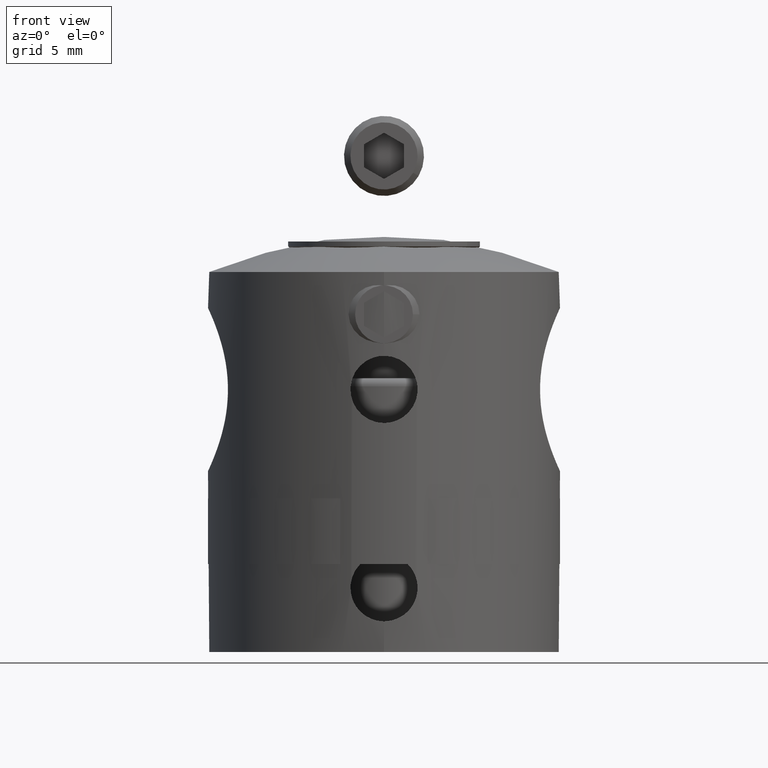
[diagram: clean part render]
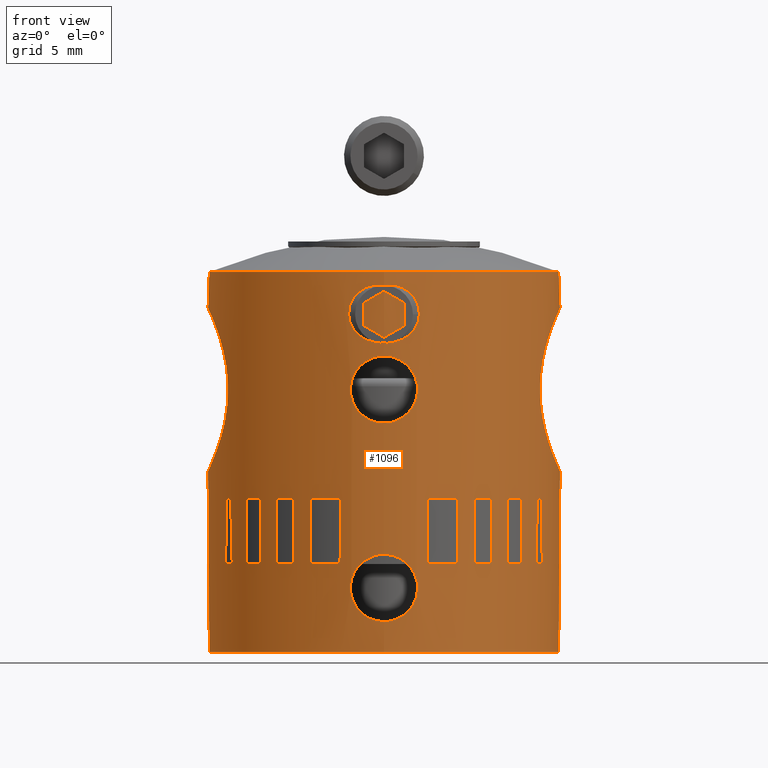
[diagram: same view with one face highlighted and labeled with its STEP entity id]
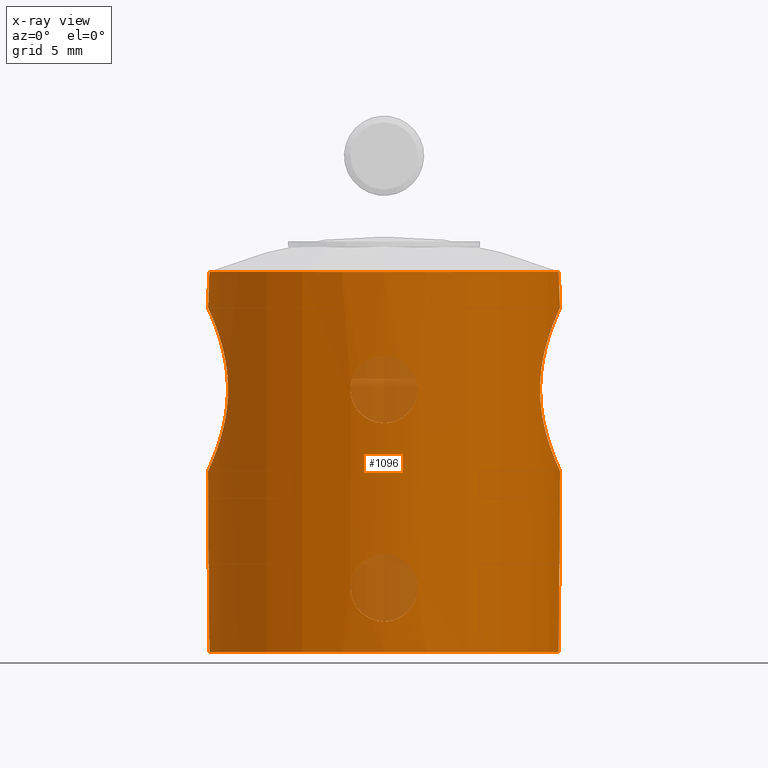
[diagram: x-ray of the same camera — body ghosted, the highlighted face saturated]
A machine part, front view. The second image highlights one B-rep face of the part: STEP entity #1096.
The next image is the same camera in x-ray: the body ghosted, the highlighted face saturated — about 5% of this face is hidden behind the body in this view.
In plain terms, the highlighted cylindrical surface (bore or boss wall) has radius 11 mm, axis along (0, 0, 1).
Its self-contained STEP definition (entity closure, byte-faithful):
#53 = CARTESIAN_POINT ( 'NONE',  ( 0.1390778096618671689, -11.00000000000000355, -11.10000000000000142 ) ) ;
#119 = DIRECTION ( 'NONE',  ( 0.000000000000000000, -1.000000000000000000, 0.000000000000000000 ) ) ;
#137 = CARTESIAN_POINT ( 'NONE',  ( 9.746609327651654553, -5.099373206684536086, 3.052602513484489855 ) ) ;
#152 = CARTESIAN_POINT ( 'NONE',  ( 9.746124043521529501, -5.100300603888072715, 3.559708417596913588 ) ) ;
#154 = CARTESIAN_POINT ( 'NONE',  ( 1.670711584421386231, -10.87265779864739379, 2.120311429146117810 ) ) ;
#173 = CARTESIAN_POINT ( 'NONE',  ( 10.47201491691116360, 3.376167339972386383, -0.4368857019754786020 ) ) ;
#187 = CARTESIAN_POINT ( 'NONE',  ( 10.00222700330179215, 4.579911297734634346, 1.131586462508988866 ) ) ;
#189 = CARTESIAN_POINT ( 'NONE',  ( 1.823215479922151827, -10.84812657183626960, 2.348921815245837319 ) ) ;
#203 = CARTESIAN_POINT ( 'NONE',  ( 10.47336877759368257, 3.371864480480706749, 7.240471103475924153 ) ) ;
#213 = CARTESIAN_POINT ( 'NONE',  ( -10.00436061697044465, 4.575241178648819407, 1.122541233511171077 ) ) ;
#223 = CARTESIAN_POINT ( 'NONE',  ( 1.582514419226412228, -10.88600606640208035, -10.38718783353529673 ) ) ;
#234 = CARTESIAN_POINT ( 'NONE',  ( -10.30987621817059896, 3.842732241926126946, 6.769126542046134176 ) ) ;
#248 = CARTESIAN_POINT ( 'NONE',  ( -1.821864279235781092, -10.84835111419837617, -7.946684534337975947 ) ) ;
#251 = CARTESIAN_POINT ( 'NONE',  ( -10.69790093024884925, 2.576078500588502074, 7.814079172159772213 ) ) ;
#268 = CARTESIAN_POINT ( 'NONE',  ( -10.76752374769291798, -2.271502190894518325, 7.978547653442555898 ) ) ;
#289 = CARTESIAN_POINT ( 'NONE',  ( -9.764554807653102131, 5.065479761543582704, 2.718647728195082713 ) ) ;
#320 = CARTESIAN_POINT ( 'NONE',  ( -10.99999999999999645, 4.878909776184769953E-16, -1.700000000000003064 ) ) ;
#325 = CARTESIAN_POINT ( 'NONE',  ( -0.6781069570240140232, -10.97981643080941438, 5.392249392990757784 ) ) ;
#330 = CARTESIAN_POINT ( 'NONE',  ( 2.033263212878624770, -10.81048461628543755, -9.542819864721787226 ) ) ;
#349 = CARTESIAN_POINT ( 'NONE',  ( -10.87810309732536318, -1.662940417430559759, -1.432878585699570939 ) ) ;
#374 = CARTESIAN_POINT ( 'NONE',  ( 10.31115410062419535, -3.839293709232862728, 0.02699850404313090813 ) ) ;
#403 = CARTESIAN_POINT ( 'NONE',  ( 10.55213191267872297, -3.119896509840596632, -0.6479981029836979767 ) ) ;
#434 = ORIENTED_EDGE ( 'NONE', *, *, #4637, .T. ) ;
#562 = CARTESIAN_POINT ( 'NONE',  ( 10.87989800168599963, 1.651396176960100437, 8.236911357964345370 ) ) ;
#575 = ORIENTED_EDGE ( 'NONE', *, *, #973, .T. ) ;
#577 = CARTESIAN_POINT ( 'NONE',  ( 10.70022606909252794, 2.566238421094040767, 7.819640233800054574 ) ) ;
#579 = CARTESIAN_POINT ( 'NONE',  ( -2.303929616531696922E-16, -11.00000000000000000, 1.300000000000004263 ) ) ;
#589 = CARTESIAN_POINT ( 'NONE',  ( 10.00459041982639086, 4.574747880705966274, 5.678538269461365751 ) ) ;
#606 = CARTESIAN_POINT ( 'NONE',  ( 9.880766135392445193, 4.836382232452138830, 1.747518722099671518 ) ) ;
#609 = CARTESIAN_POINT ( 'NONE',  ( 0.1390778096618647541, -11.00000000000000355, 1.300000000000004485 ) ) ;
#636 = CARTESIAN_POINT ( 'NONE',  ( -9.831210612696356321, 4.934853384125914566, 4.730436153801835353 ) ) ;
#654 = CARTESIAN_POINT ( 'NONE',  ( -9.768733347336901573, -5.056898271221757390, 4.083022002038141807 ) ) ;
#658 = DIRECTION ( 'NONE',  ( -0.000000000000000000, 1.081595917263183534E-17, 1.000000000000000000 ) ) ;
#670 = CARTESIAN_POINT ( 'NONE',  ( -0.9319663072103629986, -10.96118774137462815, -7.113117520548483341 ) ) ;
#672 = CARTESIAN_POINT ( 'NONE',  ( -10.92203846952601332, 1.349500825788742198, 8.329965682474750110 ) ) ;
#692 = CARTESIAN_POINT ( 'NONE',  ( -9.833678025644264409, -4.929959429588496533, 4.748884314534944195 ) ) ;
#704 = CARTESIAN_POINT ( 'NONE',  ( -0.6781376468636769461, -10.97981628967169243, -10.99225057744506806 ) ) ;
#706 = CARTESIAN_POINT ( 'NONE',  ( -9.880785821988750328, 4.836366772746155007, 5.052864538979770614 ) ) ;
#720 = CARTESIAN_POINT ( 'NONE',  ( -0.2757686476963308042, -10.99736528176723205, -11.08632082349912729 ) ) ;
#733 = CARTESIAN_POINT ( 'NONE',  ( -1.992922399063346006, -10.81809270954977897, 4.076203121792942419 ) ) ;
#773 = CARTESIAN_POINT ( 'NONE',  ( -0.9322983872529652105, -10.96116125874257996, 1.513269296229716065 ) ) ;
#816 = CARTESIAN_POINT ( 'NONE',  ( 10.92358240342935716, -1.335907363905574741, -1.533369162542973951 ) ) ;
#853 = CARTESIAN_POINT ( 'NONE',  ( 10.76607921010691982, -2.278039284623407656, -1.175144396893942123 ) ) ;
#867 = B_SPLINE_CURVE_WITH_KNOTS ( 'NONE', 3,
 ( #5302, #5287, #720, #3213, #704, #2781, #3655, #4880, #4857, #1527, #1599, #1120, #4441, #1564, #2029, #1161, #5325, #2802, #248, #4927, #3638, #4103, #4041, #4078, #670, #1104, #1133, #2832, #4058, #4457, #1970, #2435, #3594, #3673, #2370, #4475, #4912, #4895, #1580, #2406, #4500, #2004, #1179, #330, #5081, #2844, #3665, #4089, #223, #2083, #2999, #4618, #2517, #2126, #53, #2579 ),
 .UNSPECIFIED., .T., .F.,
 ( 4, 2, 2, 2, 2, 2, 2, 2, 2, 2, 2, 2, 2, 2, 2, 2, 2, 2, 2, 2, 2, 2, 2, 2, 2, 2, 2, 4 ),
 ( 0.000000000000000000, 0.0004112398612379134888, 0.0008224797224758267607, 0.001233719583713739762, 0.001644959444951652654, 0.002467439167427479089, 0.003289918889903304874, 0.003701158751141219935, 0.004112398612379135864, 0.004523638473617050924, 0.004934878334854965118, 0.005346118196092881046, 0.005757358057330795240, 0.006168597918568711168, 0.006579837779806626229, 0.007402317502282455483, 0.007813557363520372279, 0.008224797224758285605, 0.008636037085996200666, 0.009047276947234115727, 0.009869756669709951052, 0.01028099653094787305, 0.01069223639218579332, 0.01110347625342371358, 0.01151471611466163385, 0.01233719583713747785, 0.01274843569837539811, 0.01315967555961331664 ),
 .UNSPECIFIED. ) ;
#908 = CARTESIAN_POINT ( 'NONE',  ( -10.99999999999999645, 0.000000000000000000, -1.700000000000002620 ) ) ;
#909 = CARTESIAN_POINT ( 'NONE',  ( 1.281199630984558580, -10.92573843364915476, 5.069567192311198234 ) ) ;
#929 = AXIS2_PLACEMENT_3D ( 'NONE', #966, #2225, #119 ) ;
#966 = CARTESIAN_POINT ( 'NONE',  ( 0.000000000000000000, -2.812149384884277619E-16, -13.00000000000000178 ) ) ;
#971 = CARTESIAN_POINT ( 'NONE',  ( 10.07413874253475505, -4.421680918401311722, 5.962721705325782828 ) ) ;
#973 = EDGE_CURVE ( 'NONE', #2203, #2203, #2979, .T. ) ;
#983 = CARTESIAN_POINT ( 'NONE',  ( 9.883215163198308062, 4.831377203079140870, 5.066688074893106908 ) ) ;
#997 = CARTESIAN_POINT ( 'NONE',  ( 9.780729526921804862, -5.033756045906779164, 4.236366929545547499 ) ) ;
#1019 = CARTESIAN_POINT ( 'NONE',  ( 9.833678025644269738, 4.929959429588492092, 4.748884314534945972 ) ) ;
#1021 = CARTESIAN_POINT ( 'NONE',  ( 0.6806038088607768710, -10.97965432502792993, 1.408647596143614900 ) ) ;
#1041 = CARTESIAN_POINT ( 'NONE',  ( 10.23062083369497977, 4.046496105150159117, 6.521604265238561737 ) ) ;
#1043 = CARTESIAN_POINT ( 'NONE',  ( 1.887604345443004039, -10.83696457773362098, 2.469507123571951013 ) ) ;
#1064 = CIRCLE ( 'NONE', #4962, 10.99999999999999467 ) ;
#1066 = CARTESIAN_POINT ( 'NONE',  ( -10.47088620841679152, 3.379449766977657532, 7.233656741537114243 ) ) ;
#1071 = FACE_BOUND ( 'NONE', #2670, .T. ) ;
#1074 = CARTESIAN_POINT ( 'NONE',  ( 10.07530021768211270, -4.419092927928360837, 0.8326171782419599099 ) ) ;
#1086 = CARTESIAN_POINT ( 'NONE',  ( -9.880766135392446969, -4.836382232452140606, 1.747518722099668409 ) ) ;
#1096 = ADVANCED_FACE ( 'NONE', ( #4392, #3290, #1071, #4538, #2194, #4271 ), #4279, .T. ) ;
#1104 = CARTESIAN_POINT ( 'NONE',  ( -0.6781069570240135791, -10.97981643080941083, -7.007750607009238131 ) ) ;
#1107 = CARTESIAN_POINT ( 'NONE',  ( -10.98389058231152227, 0.6828063300958850945, 8.465519679634480710 ) ) ;
#1120 = CARTESIAN_POINT ( 'NONE',  ( -2.044350993406146788, -10.80888394006649733, -9.552623370116647195 ) ) ;
#1122 = CARTESIAN_POINT ( 'NONE',  ( -9.750955816283148891, -5.091093399825954435, 3.745698098060158632 ) ) ;
#1133 = CARTESIAN_POINT ( 'NONE',  ( -0.5472116004057776539, -10.98720989896580669, -6.967886480110341729 ) ) ;
#1135 = CARTESIAN_POINT ( 'NONE',  ( -10.55011019610967971, 3.126729857943597590, 7.442751015673977122 ) ) ;
#1150 = CARTESIAN_POINT ( 'NONE',  ( -1.054892582810818880, -10.94989690070195998, 5.220954790265365908 ) ) ;
#1161 = CARTESIAN_POINT ( 'NONE',  ( -2.032659403802354436, -10.81059865162793621, -8.454853891728369319 ) ) ;
#1173 = CARTESIAN_POINT ( 'NONE',  ( 0.5505417721006471421, -10.98913941872515565, 5.444946193628508624 ) ) ;
#1179 = CARTESIAN_POINT ( 'NONE',  ( 2.086595700918373542, -10.80031737092473421, -9.273735418408087128 ) ) ;
#1187 = CARTESIAN_POINT ( 'NONE',  ( -0.1390778096618651982, -10.99999999999999467, 1.300000000000004041 ) ) ;
#1206 = CARTESIAN_POINT ( 'NONE',  ( -1.834681010053394568, -10.84644128760293569, 2.342309513709591950 ) ) ;
#1254 = EDGE_CURVE ( 'NONE', #3824, #3824, #1064, .T. ) ;
#1398 = CARTESIAN_POINT ( 'NONE',  ( 10.55378527435345148, 3.114166653605239254, 7.452254370556787855 ) ) ;
#1416 = CARTESIAN_POINT ( 'NONE',  ( 10.55011019610968326, -3.126729857943599811, 7.442751015673983339 ) ) ;
#1418 = CARTESIAN_POINT ( 'NONE',  ( 0.000000000000000000, 0.000000000000000000, 13.00000000000000178 ) ) ;
#1434 = CARTESIAN_POINT ( 'NONE',  ( 10.76247523156003894, 2.278529707840949214, -1.165747467150982208 ) ) ;
#1449 = CARTESIAN_POINT ( 'NONE',  ( 10.98389058231152049, -0.6828063300958880921, 8.465519679634482486 ) ) ;
#1464 = CARTESIAN_POINT ( 'NONE',  ( 10.22777535093212542, 4.053652137328400684, 0.2876938377369762656 ) ) ;
#1493 = CARTESIAN_POINT ( 'NONE',  ( -10.76524624909549033, 2.281684813646023713, 7.973174196290838900 ) ) ;
#1513 = CARTESIAN_POINT ( 'NONE',  ( -10.47201491691117070, -3.376167339972385939, -0.4368857019754819881 ) ) ;
#1527 = CARTESIAN_POINT ( 'NONE',  ( -1.678338565524258641, -10.87295724076965264, -10.29145425403354608 ) ) ;
#1529 = CARTESIAN_POINT ( 'NONE',  ( -10.69623310193279231, -2.571608090004072977, -1.007332457931326308 ) ) ;
#1549 = CARTESIAN_POINT ( 'NONE',  ( -10.00294675193620719, 4.578365243016969011, 5.671778256404885532 ) ) ;
#1564 = CARTESIAN_POINT ( 'NONE',  ( -2.100080576060141979, -10.79766926613581823, -8.863934974792822885 ) ) ;
#1575 = CARTESIAN_POINT ( 'NONE',  ( 0.2735815360057507473, -11.00002099589623938, 5.500109978512680797 ) ) ;
#1580 = CARTESIAN_POINT ( 'NONE',  ( 1.885922255304093076, -10.83725952041489293, -8.066019305492174496 ) ) ;
#1599 = CARTESIAN_POINT ( 'NONE',  ( -1.834681010053395678, -10.84644128760293569, -10.05769048629040796 ) ) ;
#1615 = CARTESIAN_POINT ( 'NONE',  ( -1.281990447053926951, -10.92563686889391938, 5.068884418742695352 ) ) ;
#1616 = AXIS2_PLACEMENT_3D ( 'NONE', #1418, #3503, #2707 ) ;
#1641 = CARTESIAN_POINT ( 'NONE',  ( -10.79372047998855244, -2.126081526392296528, -1.238728156202183239 ) ) ;
#1723 = CARTESIAN_POINT ( 'NONE',  ( 11.00000000000000000, -1.589945998376880044E-16, -1.700000000000002620 ) ) ;
#1778 = CARTESIAN_POINT ( 'NONE',  ( 0.000000000000000000, -11.00000000000000000, -13.00000000000000178 ) ) ;
#1825 = CARTESIAN_POINT ( 'NONE',  ( 10.92420653231055105, 1.331174097726977257, 8.334749637362552477 ) ) ;
#1838 = CARTESIAN_POINT ( 'NONE',  ( 10.47088620841678974, -3.379449766977658864, 7.233656741537116908 ) ) ;
#1852 = CARTESIAN_POINT ( 'NONE',  ( 0.2763807230148077054, -10.99736402501771515, 1.313681451969391123 ) ) ;
#1868 = CARTESIAN_POINT ( 'NONE',  ( 10.30987621817060074, -3.842732241926129610, 6.769126542046135953 ) ) ;
#1903 = CARTESIAN_POINT ( 'NONE',  ( -10.22938670084713308, 4.049654862654768372, 0.2822873204059796470 ) ) ;
#1916 = CARTESIAN_POINT ( 'NONE',  ( -10.07469812271536469, -4.420400662356025023, 0.8351211953837005542 ) ) ;
#1920 = EDGE_CURVE ( 'NONE', #3037, #3037, #4205, .T. ) ;
#1936 = CARTESIAN_POINT ( 'NONE',  ( -10.47336877759368434, -3.371864480480712079, 7.240471103475918824 ) ) ;
#1959 = CARTESIAN_POINT ( 'NONE',  ( -10.69954747067740364, 2.569226743090020637, -1.018044456144164611 ) ) ;
#1970 = CARTESIAN_POINT ( 'NONE',  ( 0.5505417721006465870, -10.98913941872515920, -6.955053806371497060 ) ) ;
#1972 = CARTESIAN_POINT ( 'NONE',  ( -10.76607921010692692, 2.278039284623406768, -1.175144396893942567 ) ) ;
#1997 = CARTESIAN_POINT ( 'NONE',  ( -1.388537688308394413, -10.91244555373267211, 1.818661422767404279 ) ) ;
#2004 = CARTESIAN_POINT ( 'NONE',  ( 2.100101276507924997, -10.79766524018844898, -9.137153442652046209 ) ) ;
#2024 = CARTESIAN_POINT ( 'NONE',  ( -1.887465525486917262, -10.83698959357259994, 4.330840609722904411 ) ) ;
#2029 = CARTESIAN_POINT ( 'NONE',  ( -2.086371845620103915, -10.80036110415988482, -8.724425957257206932 ) ) ;
#2039 = CARTESIAN_POINT ( 'NONE',  ( -0.5445907593099170718, -10.98733418043456744, 1.367217711978823580 ) ) ;
#2045 = CARTESIAN_POINT ( 'NONE',  ( -10.98362801482573126, -0.6851161954445406099, -1.664940816447191274 ) ) ;
#2083 = CARTESIAN_POINT ( 'NONE',  ( 1.293096815573841152, -10.92546660261073121, -10.67704159633094463 ) ) ;
#2126 = CARTESIAN_POINT ( 'NONE',  ( 0.2763807230148072058, -10.99736402501771515, -11.08631854803060968 ) ) ;
#2151 = CARTESIAN_POINT ( 'NONE',  ( 0.000000000000000000, -10.99999999999999822, 1.300000000000003819 ) ) ;
#2194 = FACE_OUTER_BOUND ( 'NONE', #4655, .T. ) ;
#2203 = VERTEX_POINT ( 'NONE', #2151 ) ;
#2225 = DIRECTION ( 'NONE',  ( -0.000000000000000000, 1.081595917263183534E-17, 1.000000000000000000 ) ) ;
#2244 = CARTESIAN_POINT ( 'NONE',  ( 10.30907895527403184, 3.845060912577609180, 0.03314621997213567511 ) ) ;
#2255 = CARTESIAN_POINT ( 'NONE',  ( 10.87810309732536140, 1.662940417430556428, -1.432878585699572049 ) ) ;
#2275 = CARTESIAN_POINT ( 'NONE',  ( 2.099795748563275666, -10.79772466112062901, 3.678932909499353254 ) ) ;
#2292 = CARTESIAN_POINT ( 'NONE',  ( 10.22735391402577498, -4.054721379485362043, 6.510954711635394077 ) ) ;
#2307 = CARTESIAN_POINT ( 'NONE',  ( 11.00000000000000000, 4.878909776184769953E-16, -1.700000000000002842 ) ) ;
#2315 = CARTESIAN_POINT ( 'NONE',  ( -9.750431221126518722, 5.092096281612852771, 3.730889623667179578 ) ) ;
#2335 = CARTESIAN_POINT ( 'NONE',  ( -10.07530021768211625, 4.419092927928359948, 0.8326171782419587997 ) ) ;
#2355 = CARTESIAN_POINT ( 'NONE',  ( -10.66112523159966941, -2.713002840732190446, -0.9216557631687837260 ) ) ;
#2370 = CARTESIAN_POINT ( 'NONE',  ( 1.386736755965818357, -10.91267702308485887, -7.417060461664108928 ) ) ;
#2372 = CARTESIAN_POINT ( 'NONE',  ( -11.00031598307091052, -0.3266202780843059927, 8.500681533250936894 ) ) ;
#2388 = CARTESIAN_POINT ( 'NONE',  ( -9.831401816782662451, -4.934482580680000119, 2.067319543398263626 ) ) ;
#2406 = CARTESIAN_POINT ( 'NONE',  ( 2.044856290180034897, -10.80879962882139722, -8.448045730545238996 ) ) ;
#2412 = CARTESIAN_POINT ( 'NONE',  ( 9.913515838807221314, -4.767307365066425717, 1.580606404334516490 ) ) ;
#2415 = CARTESIAN_POINT ( 'NONE',  ( -2.099837753199915280, -10.79771649180663928, 3.124156061593999389 ) ) ;
#2417 = ORIENTED_EDGE ( 'NONE', *, *, #1254, .F. ) ;
#2435 = CARTESIAN_POINT ( 'NONE',  ( 0.9298327460409486767, -10.96136311852415801, -7.112107958911355610 ) ) ;
#2449 = CARTESIAN_POINT ( 'NONE',  ( -1.280823970048206473, -10.92577857814184661, 1.730181130698638770 ) ) ;
#2517 = CARTESIAN_POINT ( 'NONE',  ( 0.5474969020630485739, -10.98720387291686862, -11.03208231382050641 ) ) ;
#2567 = EDGE_CURVE ( 'NONE', #2834, #2834, #4625, .T. ) ;
#2579 = CARTESIAN_POINT ( 'NONE',  ( -5.421010862427522170E-17, -11.00000000000000000, -11.09999999999999787 ) ) ;
#2656 = CARTESIAN_POINT ( 'NONE',  ( 10.99967404411870753, -0.3475679165322325681, 8.499296956748107590 ) ) ;
#2670 = EDGE_LOOP ( 'NONE', ( #3079 ) ) ;
#2674 = CARTESIAN_POINT ( 'NONE',  ( 10.00294675193621075, -4.578365243016970787, 5.671778256404891749 ) ) ;
#2676 = CARTESIAN_POINT ( 'NONE',  ( 2.033263212878623882, -10.81048461628543755, 2.857180135278210020 ) ) ;
#2689 = CARTESIAN_POINT ( 'NONE',  ( 9.746435882187437727, 5.099704667917424494, 3.577150915229583727 ) ) ;
#2704 = CARTESIAN_POINT ( 'NONE',  ( 10.69790093024884570, -2.576078500588501630, 7.814079172159768660 ) ) ;
#2707 = DIRECTION ( 'NONE',  ( 0.000000000000000000, -1.000000000000000000, 0.000000000000000000 ) ) ;
#2723 = CARTESIAN_POINT ( 'NONE',  ( 9.764554807653103907, -5.065479761543583592, 2.718647728195081381 ) ) ;
#2735 = CARTESIAN_POINT ( 'NONE',  ( -9.763479344190171716, -5.067548827356643137, 2.732838534686777177 ) ) ;
#2749 = CARTESIAN_POINT ( 'NONE',  ( -9.746609327651645671, 5.099373206684538751, 3.052602513484487190 ) ) ;
#2766 = CARTESIAN_POINT ( 'NONE',  ( -10.31115410062419002, 3.839293709232858287, 0.02699850404313035301 ) ) ;
#2781 = CARTESIAN_POINT ( 'NONE',  ( -0.9322983872529648774, -10.96116125874258174, -10.88673070377028118 ) ) ;
#2784 = CARTESIAN_POINT ( 'NONE',  ( -10.70022606909252794, -2.566238421094042543, 7.819640233800052798 ) ) ;
#2802 = CARTESIAN_POINT ( 'NONE',  ( -1.887465525486915929, -10.83698959357260527, -8.069159390277093280 ) ) ;
#2804 = CARTESIAN_POINT ( 'NONE',  ( -10.22735391402576965, 4.054721379485363819, 6.510954711635391412 ) ) ;
#2824 = CARTESIAN_POINT ( 'NONE',  ( -2.032659403802354436, -10.81059865162793798, 3.945146108271627927 ) ) ;
#2832 = CARTESIAN_POINT ( 'NONE',  ( -0.2774242944193053839, -10.99732956950990115, -6.913864420944086042 ) ) ;
#2834 = VERTEX_POINT ( 'NONE', #1723 ) ;
#2844 = CARTESIAN_POINT ( 'NONE',  ( 1.887604345443003817, -10.83696457773361743, -9.930492876428047566 ) ) ;
#2847 = CARTESIAN_POINT ( 'NONE',  ( -1.670043013049525404, -10.87275805320107125, 4.680476183582724659 ) ) ;
#2858 = CARTESIAN_POINT ( 'NONE',  ( 10.22938670084713841, -4.049654862654768372, 0.2822873204059809238 ) ) ;
#2979 = B_SPLINE_CURVE_WITH_KNOTS ( 'NONE', 3,
 ( #3265, #1187, #3279, #2039, #4513, #773, #3709, #2449, #1997, #4906, #1206, #5356, #2415, #4131, #3250, #2824, #733, #2024, #3687, #2847, #4116, #4921, #1615, #1150, #4069, #325, #4494, #4946, #4530, #1575, #1173, #4092, #5339, #909, #3653, #4312, #4813, #5158, #3941, #4345, #2275, #4366, #3100, #2676, #3485, #1043, #189, #154, #3912, #3084, #4762, #1021, #3123, #1852, #609, #579 ),
 .UNSPECIFIED., .T., .F.,
 ( 4, 2, 2, 2, 2, 2, 2, 2, 2, 2, 2, 2, 2, 2, 2, 2, 2, 2, 2, 2, 2, 2, 2, 2, 2, 2, 2, 4 ),
 ( 0.000000000000000000, 0.0004112398612379172835, 0.0008224797224758345670, 0.001233719583713751688, 0.001644959444951669134, 0.002467439167427503376, 0.003289918889903338268, 0.003701158751141255497, 0.004112398612379170558, 0.004523638473617086486, 0.004934878334855002414, 0.005346118196092918343, 0.005757358057330834271, 0.006168597918568750199, 0.006579837779806666127, 0.007402317502282496249, 0.007813557363520412177, 0.008224797224758327238, 0.008636037085996242299, 0.009047276947234159095, 0.009869756669709989216, 0.01028099653094790601, 0.01069223639218581934, 0.01110347625342373440, 0.01151471611466164773, 0.01233719583713747958, 0.01274843569837539464, 0.01315967555961331144 ),
 .UNSPECIFIED. ) ;
#2999 = CARTESIAN_POINT ( 'NONE',  ( 1.059417076819560322, -10.95179245714164651, -10.83370096287937479 ) ) ;
#3037 = VERTEX_POINT ( 'NONE', #908 ) ;
#3069 = CARTESIAN_POINT ( 'NONE',  ( 9.768733347336899797, 5.056898271221756502, 4.083022002038147136 ) ) ;
#3079 = ORIENTED_EDGE ( 'NONE', *, *, #1920, .T. ) ;
#3084 = CARTESIAN_POINT ( 'NONE',  ( 1.293096815573843372, -10.92546660261073299, 1.722958403669058836 ) ) ;
#3098 = CARTESIAN_POINT ( 'NONE',  ( 10.76524624909549210, -2.281684813646021492, 7.973174196290844229 ) ) ;
#3100 = CARTESIAN_POINT ( 'NONE',  ( 2.086595700918373986, -10.80031737092473598, 3.126264581591914116 ) ) ;
#3121 = CARTESIAN_POINT ( 'NONE',  ( 10.76752374769291087, 2.271502190894513440, 7.978547653442555898 ) ) ;
#3123 = CARTESIAN_POINT ( 'NONE',  ( 0.5474969020630475747, -10.98720387291686507, 1.367917686179494385 ) ) ;
#3135 = CARTESIAN_POINT ( 'NONE',  ( 9.885833756099659198, -4.824245512483265053, 1.737186389578483592 ) ) ;
#3141 = CARTESIAN_POINT ( 'NONE',  ( -9.780729526921801309, 5.033756045906779164, 4.236366929545548388 ) ) ;
#3160 = CARTESIAN_POINT ( 'NONE',  ( -9.782123209470823255, -5.031053208532883403, 4.252643437057793463 ) ) ;
#3183 = CARTESIAN_POINT ( 'NONE',  ( -10.87691252494811955, 1.670145597579502317, 8.230178205959806093 ) ) ;
#3190 = CARTESIAN_POINT ( 'NONE',  ( -10.98409477427311920, 0.6774680798639232115, -1.665946780181627673 ) ) ;
#3201 = CARTESIAN_POINT ( 'NONE',  ( -9.883215163198304509, -4.831377203079143534, 5.066688074893103355 ) ) ;
#3213 = CARTESIAN_POINT ( 'NONE',  ( -0.5445907593099171828, -10.98733418043456922, -11.03278228802117056 ) ) ;
#3215 = CARTESIAN_POINT ( 'NONE',  ( -10.47192994644006525, 3.376204713791206125, -0.4364771611540100849 ) ) ;
#3250 = CARTESIAN_POINT ( 'NONE',  ( -2.086371845620103027, -10.80036110415988482, 3.675574042742794756 ) ) ;
#3265 = CARTESIAN_POINT ( 'NONE',  ( -2.303929616531696922E-16, -11.00000000000000000, 1.300000000000004263 ) ) ;
#3279 = CARTESIAN_POINT ( 'NONE',  ( -0.2757686476963308597, -10.99736528176723205, 1.313679176500867296 ) ) ;
#3289 = CARTESIAN_POINT ( 'NONE',  ( -10.99999999999999645, 4.878909776184769953E-16, -1.700000000000003064 ) ) ;
#3290 = FACE_BOUND ( 'NONE', #3767, .T. ) ;
#3324 = CARTESIAN_POINT ( 'NONE',  ( 10.47192994644006525, -3.376204713791208345, -0.4364771611540103624 ) ) ;
#3361 = CARTESIAN_POINT ( 'NONE',  ( 10.87817437663434106, -1.662301648955468281, -1.433028291102535157 ) ) ;
#3469 = CARTESIAN_POINT ( 'NONE',  ( 9.836864287762121961, -4.923327614744372305, 2.058680103176928622 ) ) ;
#3482 = CARTESIAN_POINT ( 'NONE',  ( 10.07469812271535936, 4.420400662356024135, 0.8351211953837019975 ) ) ;
#3485 = CARTESIAN_POINT ( 'NONE',  ( 1.992727468485252951, -10.81812777981166107, 2.723313666191631288 ) ) ;
#3501 = CARTESIAN_POINT ( 'NONE',  ( 10.87691252494811600, -1.670145597579503205, 8.230178205959802540 ) ) ;
#3503 = DIRECTION ( 'NONE',  ( -0.000000000000000000, 1.081595917263183534E-17, 1.000000000000000000 ) ) ;
#3519 = CARTESIAN_POINT ( 'NONE',  ( 11.00000000000000355, 0.3420402686100480483, -1.700000000000002842 ) ) ;
#3532 = CARTESIAN_POINT ( 'NONE',  ( 9.880785821988746775, -4.836366772746155007, 5.052864538979770614 ) ) ;
#3561 = CARTESIAN_POINT ( 'NONE',  ( -10.07413874253475505, 4.421680918401309945, 5.962721705325785493 ) ) ;
#3580 = CARTESIAN_POINT ( 'NONE',  ( -10.07729814196231111, -4.414498332747689879, 5.975023958707734728 ) ) ;
#3585 = CARTESIAN_POINT ( 'NONE',  ( 10.00436061697044465, -4.575241178648818519, 1.122541233511171743 ) ) ;
#3594 = CARTESIAN_POINT ( 'NONE',  ( 1.052429674837027873, -10.95014267461733937, -7.177551404401405932 ) ) ;
#3596 = CARTESIAN_POINT ( 'NONE',  ( -9.836864287762121961, 4.923327614744370528, 2.058680103176929954 ) ) ;
#3615 = CARTESIAN_POINT ( 'NONE',  ( -9.746124043521527724, 5.100300603888073603, 3.559708417596911811 ) ) ;
#3638 = CARTESIAN_POINT ( 'NONE',  ( -1.582902319642925049, -10.88596003962311975, -7.613101617243329677 ) ) ;
#3640 = CARTESIAN_POINT ( 'NONE',  ( -10.92420653231055283, -1.331174097726979033, 8.334749637362552477 ) ) ;
#3653 = CARTESIAN_POINT ( 'NONE',  ( 1.386736755965821910, -10.91267702308485532, 4.982939538335889651 ) ) ;
#3655 = CARTESIAN_POINT ( 'NONE',  ( -1.052791956378938742, -10.95010395737945252, -10.82220585969553284 ) ) ;
#3656 = CARTESIAN_POINT ( 'NONE',  ( -10.92259533598677912, -1.344016255707062513, -1.531189509618172462 ) ) ;
#3665 = CARTESIAN_POINT ( 'NONE',  ( 1.823215479922152271, -10.84812657183626783, -10.05107818475415904 ) ) ;
#3673 = CARTESIAN_POINT ( 'NONE',  ( 1.281199630984558802, -10.92573843364916009, -7.330432807688803010 ) ) ;
#3687 = CARTESIAN_POINT ( 'NONE',  ( -1.821864279235780870, -10.84835111419836906, 4.453315465662026185 ) ) ;
#3709 = CARTESIAN_POINT ( 'NONE',  ( -1.052791956378939187, -10.95010395737944897, 1.577794140304467962 ) ) ;
#3767 = EDGE_LOOP ( 'NONE', ( #575 ) ) ;
#3770 = CARTESIAN_POINT ( 'NONE',  ( 11.00000000000000000, 4.878909776184769953E-16, -1.700000000000002842 ) ) ;
#3824 = VERTEX_POINT ( 'NONE', #4621 ) ;
#3856 = EDGE_CURVE ( 'NONE', #4007, #4007, #867, .T. ) ;
#3892 = CARTESIAN_POINT ( 'NONE',  ( 10.92203846952602042, -1.349500825788742864, 8.329965682474755440 ) ) ;
#3910 = CARTESIAN_POINT ( 'NONE',  ( 10.55128804721512914, 3.122534710036640071, -0.6457568860745835915 ) ) ;
#3912 = CARTESIAN_POINT ( 'NONE',  ( 1.582514419226412672, -10.88600606640207857, 2.012812166464708508 ) ) ;
#3925 = CARTESIAN_POINT ( 'NONE',  ( 10.31158215273080891, 3.838254438372354915, 6.774387535194484222 ) ) ;
#3938 = CARTESIAN_POINT ( 'NONE',  ( 9.745983956010393356, 5.100568316517895440, 3.071848456478677658 ) ) ;
#3941 = CARTESIAN_POINT ( 'NONE',  ( 1.885922255304093742, -10.83725952041489116, 4.333980694507823195 ) ) ;
#3960 = CARTESIAN_POINT ( 'NONE',  ( 9.767782344364498215, -5.058733202320075506, 4.069440715829664157 ) ) ;
#3986 = CARTESIAN_POINT ( 'NONE',  ( -10.87989800168600318, -1.651396176960102435, 8.236911357964345370 ) ) ;
#3989 = CARTESIAN_POINT ( 'NONE',  ( 0.000000000000000000, -2.434903461179736260E-17, 10.74878637916746804 ) ) ;
#4001 = CARTESIAN_POINT ( 'NONE',  ( -10.22777535093213253, -4.053652137328400684, 0.2876938377369743782 ) ) ;
#4007 = VERTEX_POINT ( 'NONE', #4290 ) ;
#4022 = CARTESIAN_POINT ( 'NONE',  ( -9.746435882187439503, -5.099704667917420053, 3.577150915229576622 ) ) ;
#4041 = CARTESIAN_POINT ( 'NONE',  ( -1.281990447053926729, -10.92563686889392649, -7.331115581257310332 ) ) ;
#4043 = CARTESIAN_POINT ( 'NONE',  ( -9.767782344364498215, 5.058733202320076394, 4.069440715829665045 ) ) ;
#4058 = CARTESIAN_POINT ( 'NONE',  ( -0.1380551056559362610, -10.99998945361097569, -6.900055242994412197 ) ) ;
#4060 = CARTESIAN_POINT ( 'NONE',  ( -10.31158215273080536, -3.838254438372354915, 6.774387535194484222 ) ) ;
#4069 = CARTESIAN_POINT ( 'NONE',  ( -0.9319663072103634427, -10.96118774137463170, 5.286882479451516126 ) ) ;
#4078 = CARTESIAN_POINT ( 'NONE',  ( -1.054892582810820212, -10.94989690070195998, -7.179045209734632671 ) ) ;
#4087 = CARTESIAN_POINT ( 'NONE',  ( -10.99999999999999467, 0.3420402686100469936, -1.700000000000003064 ) ) ;
#4089 = CARTESIAN_POINT ( 'NONE',  ( 1.670711584421387341, -10.87265779864739201, -10.27968857085388166 ) ) ;
#4092 = CARTESIAN_POINT ( 'NONE',  ( 0.9298327460409496759, -10.96136311852415623, 5.287892041088646522 ) ) ;
#4103 = CARTESIAN_POINT ( 'NONE',  ( -1.387671354983934568, -10.91256495734889675, -7.417775272541513587 ) ) ;
#4116 = CARTESIAN_POINT ( 'NONE',  ( -1.582902319642925049, -10.88596003962311087, 4.786898382756668902 ) ) ;
#4131 = CARTESIAN_POINT ( 'NONE',  ( -2.100080576060140647, -10.79766926613582001, 3.536065025207176138 ) ) ;
#4195 = CARTESIAN_POINT ( 'NONE',  ( 10.99999999999999822, -0.3420402686100470491, -1.700000000000002842 ) ) ;
#4205 = B_SPLINE_CURVE_WITH_KNOTS ( 'NONE', 3,
 ( #320, #4087, #3190, #4845, #4822, #1972, #1959, #4804, #3215, #2766, #1903, #2335, #213, #5233, #4384, #3596, #4859, #289, #2749, #3615, #2315, #4043, #3141, #636, #706, #1549, #3561, #2804, #234, #1066, #1135, #251, #1493, #3183, #672, #1107, #5274, #2372, #5254, #3640, #3986, #268, #2784, #4882, #1936, #4060, #4460, #3580, #5215, #3201, #692, #3160, #654, #1122, #4022, #4427, #2735, #2388, #1086, #4405, #1916, #4001, #5289, #1513, #4837, #2355, #1529, #4443, #1641, #349, #3656, #2045, #4930, #3289 ),
 .UNSPECIFIED., .T., .F.,
 ( 4, 2, 2, 2, 2, 2, 2, 2, 2, 2, 2, 2, 2, 2, 2, 2, 2, 2, 2, 2, 2, 2, 2, 2, 2, 2, 2, 2, 2, 2, 2, 2, 2, 2, 2, 2, 4 ),
 ( 0.000000000000000000, 0.001010597652588614238, 0.002021195305177228476, 0.003031792957765842931, 0.004042390610354456952, 0.005052988262943072274, 0.006063585915531685862, 0.006568884741825992656, 0.007074183568120298582, 0.008084781220708908700, 0.008590080047003218963, 0.009095378873297524022, 0.01010597652588613761, 0.01111657417847475120, 0.01212717183106336652, 0.01313776948365198011, 0.01414836713624059022, 0.01515896478882920208, 0.01616956244141781046, 0.01718016009400642752, 0.01819075774659503764, 0.01920135539918364775, 0.02021195305177225787, 0.02122255070436086799, 0.02223314835694947811, 0.02324374600953809170, 0.02374904483583240022, 0.02425434366212670181, 0.02526494131471530846, 0.02627553896730391511, 0.02728613661989252523, 0.02829673427248112841, 0.02930733192506973506, 0.02981263075136404012, 0.03031792957765834171, 0.03132852723024694835, 0.03233912488283555847 ),
 .UNSPECIFIED. ) ;
#4209 = CARTESIAN_POINT ( 'NONE',  ( 10.69954747067740186, -2.569226743090021081, -1.018044456144165499 ) ) ;
#4271 = FACE_OUTER_BOUND ( 'NONE', #4839, .T. ) ;
#4279 = CYLINDRICAL_SURFACE ( 'NONE', #1616, 10.99999999999999645 ) ;
#4290 = CARTESIAN_POINT ( 'NONE',  ( 0.000000000000000000, -10.99999999999999822, -11.09999999999999609 ) ) ;
#4312 = CARTESIAN_POINT ( 'NONE',  ( 1.580486696390910106, -10.88630426008027996, 4.789531653077755635 ) ) ;
#4314 = CARTESIAN_POINT ( 'NONE',  ( 10.07729814196230755, 4.414498332747687215, 5.975023958707739169 ) ) ;
#4327 = CARTESIAN_POINT ( 'NONE',  ( 10.66112523159967296, 2.713002840732193999, -0.9216557631687822827 ) ) ;
#4343 = CARTESIAN_POINT ( 'NONE',  ( 9.815636342375485768, -4.965348642925766498, 2.223715856002219216 ) ) ;
#4345 = CARTESIAN_POINT ( 'NONE',  ( 2.044856290180035341, -10.80879962882139189, 3.951954269454755142 ) ) ;
#4364 = CARTESIAN_POINT ( 'NONE',  ( 10.98461965845903165, 0.6696594642287668764, 8.467083447495010518 ) ) ;
#4366 = CARTESIAN_POINT ( 'NONE',  ( 2.100101276507925885, -10.79766524018844898, 3.262846557347955034 ) ) ;
#4377 = CARTESIAN_POINT ( 'NONE',  ( 10.98362801482572948, 0.6851161954445393887, -1.664940816447190608 ) ) ;
#4384 = CARTESIAN_POINT ( 'NONE',  ( -9.885833756099657421, 4.824245512483265053, 1.737186389578484924 ) ) ;
#4392 = FACE_BOUND ( 'NONE', #4871, .T. ) ;
#4405 = CARTESIAN_POINT ( 'NONE',  ( -10.00222700330179393, -4.579911297734634346, 1.131586462508981761 ) ) ;
#4427 = CARTESIAN_POINT ( 'NONE',  ( -9.745983956010396909, -5.100568316517894552, 3.071848456478670553 ) ) ;
#4441 = CARTESIAN_POINT ( 'NONE',  ( -2.099837753199914836, -10.79771649180664284, -9.275843938405992972 ) ) ;
#4443 = CARTESIAN_POINT ( 'NONE',  ( -10.76247523156003894, -2.278529707840948770, -1.165747467150983763 ) ) ;
#4457 = CARTESIAN_POINT ( 'NONE',  ( 0.2735815360057495260, -11.00002099589624116, -6.899890021487316005 ) ) ;
#4460 = CARTESIAN_POINT ( 'NONE',  ( -10.23062083369498154, -4.046496105150159117, 6.521604265238561737 ) ) ;
#4475 = CARTESIAN_POINT ( 'NONE',  ( 1.580486696390908996, -10.88630426008028351, -7.610468346922246496 ) ) ;
#4494 = CARTESIAN_POINT ( 'NONE',  ( -0.5472116004057775429, -10.98720989896580846, 5.432113519889659514 ) ) ;
#4500 = CARTESIAN_POINT ( 'NONE',  ( 2.099795748563274334, -10.79772466112062546, -8.721067090500651986 ) ) ;
#4513 = CARTESIAN_POINT ( 'NONE',  ( -0.6781376468636776123, -10.97981628967169776, 1.407749422554937180 ) ) ;
#4530 = CARTESIAN_POINT ( 'NONE',  ( -0.1380551056559368717, -10.99998945361096681, 5.499944757005584606 ) ) ;
#4538 = FACE_BOUND ( 'NONE', #5324, .T. ) ;
#4586 = ORIENTED_EDGE ( 'NONE', *, *, #3856, .T. ) ;
#4618 = CARTESIAN_POINT ( 'NONE',  ( 0.6806038088607760939, -10.97965432502793348, -10.99135240385638923 ) ) ;
#4621 = CARTESIAN_POINT ( 'NONE',  ( 0.000000000000000000, -10.99999999999999467, 10.74878637916746804 ) ) ;
#4625 = B_SPLINE_CURVE_WITH_KNOTS ( 'NONE', 3,
 ( #3770, #4195, #5020, #816, #3361, #853, #4209, #403, #3324, #374, #2858, #1074, #3585, #2412, #3135, #3469, #4343, #2723, #137, #152, #5143, #3960, #997, #4792, #3532, #2674, #971, #2292, #1868, #1838, #1416, #2704, #3098, #3501, #3892, #1449, #2656, #4726, #4364, #1825, #562, #3121, #577, #1398, #203, #3925, #1041, #4314, #589, #983, #1019, #5189, #3069, #5168, #2689, #3938, #4773, #5209, #606, #187, #3482, #1464, #2244, #173, #3910, #4327, #4746, #1434, #4760, #2255, #5156, #4377, #3519, #2307 ),
 .UNSPECIFIED., .T., .F.,
 ( 4, 2, 2, 2, 2, 2, 2, 2, 2, 2, 2, 2, 2, 2, 2, 2, 2, 2, 2, 2, 2, 2, 2, 2, 2, 2, 2, 2, 2, 2, 2, 2, 2, 2, 2, 2, 4 ),
 ( 0.000000000000000000, 0.001010597652588608817, 0.002021195305177217634, 0.003031792957765826017, 0.004042390610354435268, 0.005052988262943043651, 0.006063585915531652035, 0.006568884741825957094, 0.007074183568120259551, 0.008084781220708865332, 0.008590080047003168656, 0.009095378873297471981, 0.01010597652588608383, 0.01111657417847469395, 0.01212717183106330407, 0.01313776948365191419, 0.01414836713624052257, 0.01515896478882913442, 0.01616956244141774801, 0.01718016009400635813, 0.01819075774659496825, 0.01920135539918358530, 0.02021195305177219542, 0.02122255070436080901, 0.02223314835694941913, 0.02324374600953803272, 0.02374904483583234124, 0.02425434366212664630, 0.02526494131471526683, 0.02627553896730388042, 0.02728613661989249747, 0.02829673427248111106, 0.02930733192506972812, 0.02981263075136403665, 0.03031792957765834517, 0.03132852723024696223, 0.03233912488283557235 ),
 .UNSPECIFIED. ) ;
#4637 = EDGE_CURVE ( 'NONE', #5375, #5375, #5049, .T. ) ;
#4655 = EDGE_LOOP ( 'NONE', ( #2417 ) ) ;
#4726 = CARTESIAN_POINT ( 'NONE',  ( 11.00031598307091407, 0.3266202780843052711, 8.500681533250942223 ) ) ;
#4746 = CARTESIAN_POINT ( 'NONE',  ( 10.69623310193279409, 2.571608090004069869, -1.007332457931328529 ) ) ;
#4760 = CARTESIAN_POINT ( 'NONE',  ( 10.79372047998855244, 2.126081526392300969, -1.238728156202180797 ) ) ;
#4762 = CARTESIAN_POINT ( 'NONE',  ( 1.059417076819560100, -10.95179245714164651, 1.566299037120627569 ) ) ;
#4773 = CARTESIAN_POINT ( 'NONE',  ( 9.763479344190173492, 5.067548827356642249, 2.732838534686781617 ) ) ;
#4792 = CARTESIAN_POINT ( 'NONE',  ( 9.831210612696356321, -4.934853384125913678, 4.730436153801833576 ) ) ;
#4804 = CARTESIAN_POINT ( 'NONE',  ( -10.55213191267872297, 3.119896509840594412, -0.6479981029836973105 ) ) ;
#4813 = CARTESIAN_POINT ( 'NONE',  ( 1.669073131240826457, -10.87290827909674107, 4.681760315131693773 ) ) ;
#4822 = CARTESIAN_POINT ( 'NONE',  ( -10.87817437663435172, 1.662301648955468059, -1.433028291102536045 ) ) ;
#4837 = CARTESIAN_POINT ( 'NONE',  ( -10.55128804721513802, -3.122534710036638739, -0.6457568860745837025 ) ) ;
#4839 = EDGE_LOOP ( 'NONE', ( #434 ) ) ;
#4845 = CARTESIAN_POINT ( 'NONE',  ( -10.92358240342935360, 1.335907363905573186, -1.533369162542974395 ) ) ;
#4857 = CARTESIAN_POINT ( 'NONE',  ( -1.388537688308395968, -10.91244555373267389, -10.58133857723259474 ) ) ;
#4859 = CARTESIAN_POINT ( 'NONE',  ( -9.815636342375485768, 4.965348642925766498, 2.223715856002220548 ) ) ;
#4863 = DIRECTION ( 'NONE',  ( 0.000000000000000000, -1.000000000000000000, 0.000000000000000000 ) ) ;
#4871 = EDGE_LOOP ( 'NONE', ( #4586 ) ) ;
#4880 = CARTESIAN_POINT ( 'NONE',  ( -1.280823970048206251, -10.92577857814184128, -10.66981886930135737 ) ) ;
#4882 = CARTESIAN_POINT ( 'NONE',  ( -10.55378527435345148, -3.114166653605244584, 7.452254370556783414 ) ) ;
#4895 = CARTESIAN_POINT ( 'NONE',  ( 1.821258053761724227, -10.84845420623088330, -7.945612156517057656 ) ) ;
#4906 = CARTESIAN_POINT ( 'NONE',  ( -1.678338565524257753, -10.87295724076965797, 2.108545745966448948 ) ) ;
#4912 = CARTESIAN_POINT ( 'NONE',  ( 1.669073131240823349, -10.87290827909674107, -7.718239684868305694 ) ) ;
#4921 = CARTESIAN_POINT ( 'NONE',  ( -1.387671354983934791, -10.91256495734889498, 4.982224727458483216 ) ) ;
#4927 = CARTESIAN_POINT ( 'NONE',  ( -1.670043013049527181, -10.87275805320107658, -7.719523816417274809 ) ) ;
#4930 = CARTESIAN_POINT ( 'NONE',  ( -10.99999999999999822, -0.3420402686100448286, -1.700000000000003064 ) ) ;
#4946 = CARTESIAN_POINT ( 'NONE',  ( -0.2774242944193054949, -10.99732956950990292, 5.486135579055913425 ) ) ;
#4962 = AXIS2_PLACEMENT_3D ( 'NONE', #3989, #658, #4863 ) ;
#5020 = CARTESIAN_POINT ( 'NONE',  ( 10.98409477427311387, -0.6774680798639237667, -1.665946780181626785 ) ) ;
#5049 = CIRCLE ( 'NONE', #929, 11.00000000000000000 ) ;
#5081 = CARTESIAN_POINT ( 'NONE',  ( 1.992727468485251618, -10.81812777981166462, -9.676686333808367735 ) ) ;
#5143 = CARTESIAN_POINT ( 'NONE',  ( 9.750431221126522274, -5.092096281612855435, 3.730889623667181354 ) ) ;
#5149 = ORIENTED_EDGE ( 'NONE', *, *, #2567, .T. ) ;
#5156 = CARTESIAN_POINT ( 'NONE',  ( 10.92259533598677912, 1.344016255707065177, -1.531189509618172018 ) ) ;
#5158 = CARTESIAN_POINT ( 'NONE',  ( 1.821258053761725781, -10.84845420623088330, 4.454387843482938258 ) ) ;
#5168 = CARTESIAN_POINT ( 'NONE',  ( 9.750955816283143562, 5.091093399825951771, 3.745698098060161296 ) ) ;
#5189 = CARTESIAN_POINT ( 'NONE',  ( 9.782123209470823255, 5.031053208532880738, 4.252643437057795239 ) ) ;
#5209 = CARTESIAN_POINT ( 'NONE',  ( 9.831401816782666003, 4.934482580680002783, 2.067319543398271176 ) ) ;
#5215 = CARTESIAN_POINT ( 'NONE',  ( -10.00459041982639619, -4.574747880705967162, 5.678538269461360422 ) ) ;
#5233 = CARTESIAN_POINT ( 'NONE',  ( -9.913515838807219538, 4.767307365066424829, 1.580606404334516935 ) ) ;
#5254 = CARTESIAN_POINT ( 'NONE',  ( -10.98461965845903343, -0.6696594642287686527, 8.467083447495006965 ) ) ;
#5274 = CARTESIAN_POINT ( 'NONE',  ( -10.99967404411871108, 0.3475679165322277941, 8.499296956748107590 ) ) ;
#5287 = CARTESIAN_POINT ( 'NONE',  ( -0.1390778096618653092, -10.99999999999999645, -11.09999999999999254 ) ) ;
#5289 = CARTESIAN_POINT ( 'NONE',  ( -10.30907895527403717, -3.845060912577609624, 0.03314621997213498816 ) ) ;
#5302 = CARTESIAN_POINT ( 'NONE',  ( -5.421010862427522170E-17, -11.00000000000000000, -11.09999999999999787 ) ) ;
#5324 = EDGE_LOOP ( 'NONE', ( #5149 ) ) ;
#5325 = CARTESIAN_POINT ( 'NONE',  ( -1.992922399063346006, -10.81809270954978075, -8.323796878207067707 ) ) ;
#5339 = CARTESIAN_POINT ( 'NONE',  ( 1.052429674837028317, -10.95014267461733937, 5.222448595598597976 ) ) ;
#5356 = CARTESIAN_POINT ( 'NONE',  ( -2.044350993406146788, -10.80888394006650266, 2.847376629883352273 ) ) ;
#5375 = VERTEX_POINT ( 'NONE', #1778 ) ;